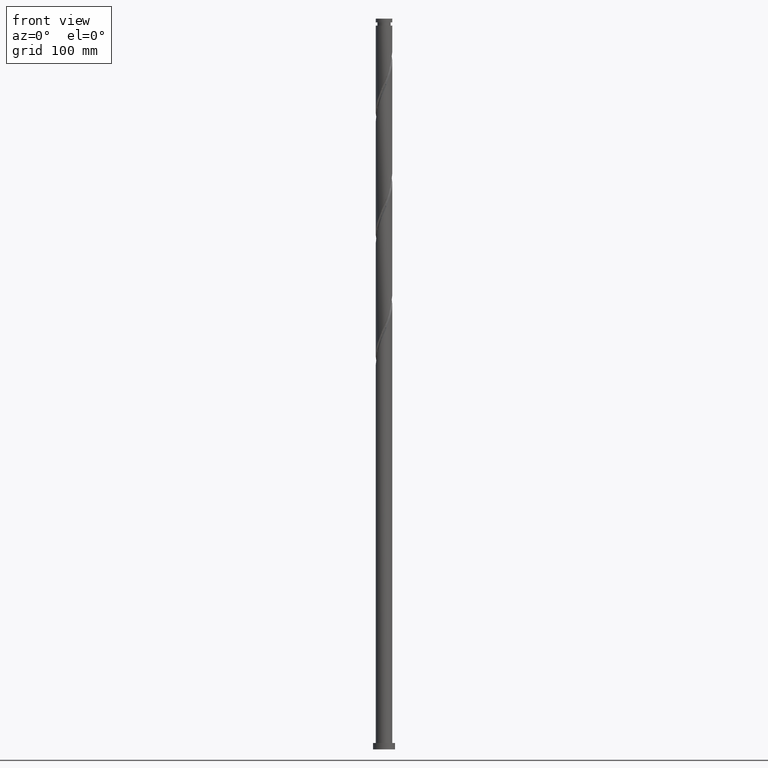
[diagram: clean part render]
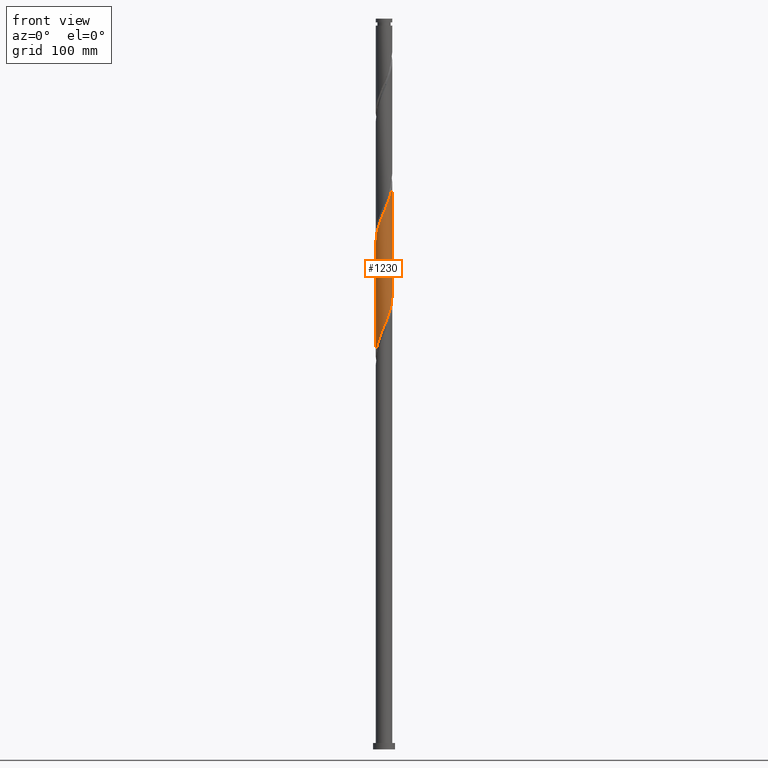
[diagram: same view with one face highlighted and labeled with its STEP entity id]
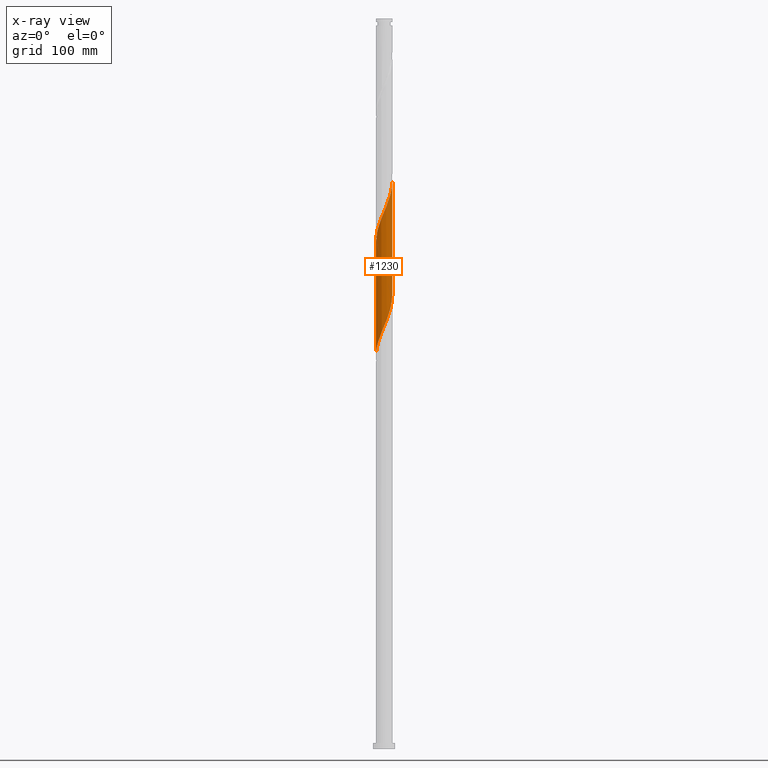
[diagram: x-ray of the same camera — body ghosted, the highlighted face saturated]
A machine part, front view. The second image highlights one B-rep face of the part: STEP entity #1230.
The next image is the same camera in x-ray: the body ghosted, the highlighted face saturated — about 0% of this face is hidden behind the body in this view.
In plain terms, the highlighted cylindrical surface (edge-blend (fillet) strip) has radius 9 mm, axis along (-0, -0, -1).
Its self-contained STEP definition (entity closure, byte-faithful):
#3 = VERTEX_POINT ( 'NONE', #1522 ) ;
#19 = CARTESIAN_POINT ( 'NONE',  ( 9.000000000000000000, -4.807045443360459022E-15, 496.5690066696683971 ) ) ;
#28 = CARTESIAN_POINT ( 'NONE',  ( 1.169912026461557675, -8.923637478648528187, 466.0012849951952489 ) ) ;
#179 = CARTESIAN_POINT ( 'NONE',  ( 8.433726960243481230, -3.229304788967275908, 488.8083025390549778 ) ) ;
#189 = FACE_OUTER_BOUND ( 'NONE', #1889, .T. ) ;
#194 = CARTESIAN_POINT ( 'NONE',  ( -8.641977487961812088, -2.513210118068413657, 560.7381271004586551 ) ) ;
#196 = DIRECTION ( 'NONE',  ( -0.000000000000000000, -0.000000000000000000, -1.000000000000000000 ) ) ;
#210 = CARTESIAN_POINT ( 'NONE',  ( -8.937772968675862018, -1.056510463936469968, 557.2293551706337666 ) ) ;
#292 = CARTESIAN_POINT ( 'NONE',  ( 3.914726728146227686, -8.138247631027358153, 597.5802323636161191 ) ) ;
#297 = CARTESIAN_POINT ( 'NONE',  ( -8.954220682007743903, -1.173921563772243770, 432.6679516618619346 ) ) ;
#304 = CARTESIAN_POINT ( 'NONE',  ( 4.557786610309060293, -7.760578664950677386, 599.3346183285286770 ) ) ;
#307 = EDGE_CURVE ( 'NONE', #1803, #3, #1816, .T. ) ;
#316 = CARTESIAN_POINT ( 'NONE',  ( 8.087884598390568058, -4.017745958009479423, 611.6153200829147636 ) ) ;
#353 = CARTESIAN_POINT ( 'NONE',  ( 2.622738405899098346, -8.609369503873200102, 469.5100569250199101 ) ) ;
#378 = CARTESIAN_POINT ( 'NONE',  ( -1.060131349976165094, -8.968404617365475673, 460.7381271004584846 ) ) ;
#386 = EDGE_CURVE ( 'NONE', #1487, #1628, #1313, .T. ) ;
#389 = CARTESIAN_POINT ( 'NONE',  ( -6.928210819915963548, -5.792758815519967186, 569.5100569250198532 ) ) ;
#411 = CARTESIAN_POINT ( 'NONE',  ( 0.000000000000000000, 0.000000000000000000, 800.0000000000000000 ) ) ;
#424 = CARTESIAN_POINT ( 'NONE',  ( -8.087884598390560953, -4.017745958009474094, 439.6854955215110863 ) ) ;
#436 = CARTESIAN_POINT ( 'NONE',  ( -6.345100722077868127, -6.426185235944545049, 446.7030393811601812 ) ) ;
#483 = CARTESIAN_POINT ( 'NONE',  ( -1.909345709596586449, -8.826695804276367241, 583.5451446443179293 ) ) ;
#494 = CARTESIAN_POINT ( 'NONE',  ( -2.622738405899103675, -8.609369503873207208, 581.7907586794059398 ) ) ;
#537 = CARTESIAN_POINT ( 'NONE',  ( -2.521823423607691517, -8.671595382634517790, 457.2293551706339372 ) ) ;
#548 = CARTESIAN_POINT ( 'NONE',  ( 3.336131102201616017, -8.392043203470045398, 471.2644428899321838 ) ) ;
#549 = CARTESIAN_POINT ( 'NONE',  ( 8.850228015680121629, -1.797115447169556068, 492.3170744688795821 ) ) ;
#564 = CARTESIAN_POINT ( 'NONE',  ( -8.110451389330130212, -3.901355951629270624, 564.2468990302829752 ) ) ;
#570 = CARTESIAN_POINT ( 'NONE',  ( 8.954220682007752785, -1.173921563772247767, 618.6328639425636311 ) ) ;
#580 = CARTESIAN_POINT ( 'NONE',  ( -7.702080871409618723, -4.655958574801333683, 441.4398814864234168 ) ) ;
#587 = CARTESIAN_POINT ( 'NONE',  ( -7.787175818416772088, -4.573407114291269338, 566.0012849951951921 ) ) ;
#612 = CARTESIAN_POINT ( 'NONE',  ( 9.000000000000012434, -0.2146260082065185038, 620.8921525829841812 ) ) ;
#616 = CARTESIAN_POINT ( 'NONE',  ( -5.200846492471890237, -7.382909698873985960, 450.2118113109847286 ) ) ;
#637 = CARTESIAN_POINT ( 'NONE',  ( 8.363380121220270524, -3.324736523091387230, 613.3697060478268668 ) ) ;
#650 = CARTESIAN_POINT ( 'NONE',  ( -6.404236555330750313, -6.323428986188232237, 571.2644428899321838 ) ) ;
#663 = CARTESIAN_POINT ( 'NONE',  ( -1.169912026461562116, -8.923637478648537069, 585.2995306092304872 ) ) ;
#690 = CARTESIAN_POINT ( 'NONE',  ( 5.772973607274883179, -6.904547467409275718, 602.8433902583531108 ) ) ;
#726 = CARTESIAN_POINT ( 'NONE',  ( 8.110451389330124883, -3.901355951629267516, 487.0539165741427041 ) ) ;
#735 = DIRECTION ( 'NONE',  ( -1.000000000000000000, 0.000000000000000000, 0.000000000000000000 ) ) ;
#738 = CARTESIAN_POINT ( 'NONE',  ( 8.638875644049969438, -2.631727088173299034, 615.1240920127391973 ) ) ;
#741 = CARTESIAN_POINT ( 'NONE',  ( -8.433726960243495441, -3.229304788967272355, 562.4925130653708720 ) ) ;
#791 = CARTESIAN_POINT ( 'NONE',  ( 8.796548163028864664, -1.902824325972774178, 616.8784779776515279 ) ) ;
#813 = ORIENTED_EDGE ( 'NONE', *, *, #307, .F. ) ;
#829 = CARTESIAN_POINT ( 'NONE',  ( -0.4304783433265422232, -9.020579153020705121, 587.0539165741425904 ) ) ;
#852 = CARTESIAN_POINT ( 'NONE',  ( -4.671915534983323681, -7.728477540496988318, 576.5276007846688344 ) ) ;
#990 = ORIENTED_EDGE ( 'NONE', *, *, #386, .F. ) ;
#1028 = CARTESIAN_POINT ( 'NONE',  ( 7.702080871409623164, -4.655958574801344341, 609.8609341180022057 ) ) ;
#1040 = CARTESIAN_POINT ( 'NONE',  ( -5.276088912864429936, -7.291288348676742359, 574.7732148197567312 ) ) ;
#1073 = CARTESIAN_POINT ( 'NONE',  ( 0.4304783433265346737, -9.020579153020694463, 464.2468990302829184 ) ) ;
#1084 = CARTESIAN_POINT ( 'NONE',  ( 8.999999999999998224, -0.5300877757809222546, 495.3184795554831226 ) ) ;
#1099 = CARTESIAN_POINT ( 'NONE',  ( 5.880262290745527309, -6.854099156856493735, 478.2819867495811650 ) ) ;
#1125 = CARTESIAN_POINT ( 'NONE',  ( -8.363380121220265195, -3.324736523091380125, 437.9311095565988694 ) ) ;
#1135 = CYLINDRICAL_SURFACE ( 'NONE', #1695, 9.000000000000001776 ) ;
#1151 = CARTESIAN_POINT ( 'NONE',  ( -8.638875644049964109, -2.631727088173291040, 436.1767235916865957 ) ) ;
#1167 = CARTESIAN_POINT ( 'NONE',  ( -8.796548163028855782, -1.902824325972765962, 434.4223376267742083 ) ) ;
#1177 = CARTESIAN_POINT ( 'NONE',  ( -8.989769301839663385, -0.4290080415344290077, 430.9135656969496608 ) ) ;
#1214 = CARTESIAN_POINT ( 'NONE',  ( 0.3148265033248102696, -8.994491885193095726, 588.8083025390551484 ) ) ;
#1230 = ADVANCED_FACE ( 'NONE', ( #189 ), #1135, .T. ) ;
#1270 = CARTESIAN_POINT ( 'NONE',  ( -3.218275075876960045, -8.404921506830934419, 455.4749692057216066 ) ) ;
#1284 = CARTESIAN_POINT ( 'NONE',  ( 6.928210819915951113, -5.792758815519967186, 481.7907586794057693 ) ) ;
#1289 = CARTESIAN_POINT ( 'NONE',  ( -9.000000000000010658, 7.464356278509995723E-16, 554.7318089347573959 ) ) ;
#1313 =( BOUNDED_CURVE ( )  B_SPLINE_CURVE ( 2, ( #19, #1084, #1473, #549, #1483, #179, #726, #1462, #2190, #1284, #2012, #1099, #1827, #2023, #1667, #548, #353, #2010, #28, #1073, #1804, #378, #2356, #537, #1270, #2056, #2254, #616, #1854, #436, #1896, #1336, #580, #424, #1125, #1151, #1167, #297, #1177, #1541, #2094 ),
 .UNSPECIFIED., .F., .T. ) 
 B_SPLINE_CURVE_WITH_KNOTS ( ( 3, 2, 2, 2, 2, 2, 2, 2, 2, 2, 2, 2, 2, 2, 2, 2, 2, 2, 2, 2, 3 ),
 ( 0.8045295809515956575, 0.8092105263157894912, 0.8157894736842105088, 0.8223684210526315264, 0.8289473684210526550, 0.8355263157894736725, 0.8421052631578946901, 0.8486842105263158187, 0.8552631578947368363, 0.8618421052631578538, 0.8684210526315789824, 0.8750000000000000000, 0.8815789473684210176, 0.8881578947368421462, 0.8947368421052631637, 0.9013157894736841813, 0.9078947368421053099, 0.9144736842105263275, 0.9210526315789473450, 0.9276315789473684736, 0.9295295809515955465 ),
 .UNSPECIFIED. ) 
 CURVE ( )  GEOMETRIC_REPRESENTATION_ITEM ( )  RATIONAL_B_SPLINE_CURVE ( ( 0.9078162034606180875, 0.9068816855934254129, 0.9090909090909469192, 0.9059859027333740933, 0.9090909090909469192, 0.9059859027333740933, 0.9090909090909469192, 0.9059859027333740933, 0.9090909090909469192, 0.9059859027333740933, 0.9090909090909469192, 0.9059859027333740933, 0.9090909090909469192, 0.9059859027333740933, 0.9090909090909469192, 0.9059859027333740933, 0.9090909090909469192, 0.9059859027333740933, 0.9090909090909469192, 0.9059859027333740933, 0.9090909090909469192, 0.9059859027333740933, 0.9090909090909469192, 0.9059859027333740933, 0.9090909090909469192, 0.9059859027333740933, 0.9090909090909469192, 0.9059859027333740933, 0.9090909090909469192, 0.9059859027333740933, 0.9090909090909469192, 0.9059859027333740933, 0.9090909090909469192, 0.9059859027333740933, 0.9090909090909469192, 0.9059859027333740933, 0.9090909090909469192, 0.9059859027333740933, 0.9090909090909469192, 0.9081951262308955997, 0.9078162034606180875 ) ) 
 REPRESENTATION_ITEM ( '' )  );
#1336 = CARTESIAN_POINT ( 'NONE',  ( -7.316277144428673829, -5.294171191593195935, 443.1942674513356337 ) ) ;
#1376 = CARTESIAN_POINT ( 'NONE',  ( 6.345100722077872568, -6.426185235944554819, 604.5977762232654413 ) ) ;
#1424 = CARTESIAN_POINT ( 'NONE',  ( 6.830688933253277639, -5.860178213768877598, 606.3521621881776582 ) ) ;
#1462 = CARTESIAN_POINT ( 'NONE',  ( 7.787175818416761430, -4.573407114291266673, 485.2995306092304304 ) ) ;
#1473 = CARTESIAN_POINT ( 'NONE',  ( 8.937772968675853136, -1.056510463936469968, 494.0714604337919127 ) ) ;
#1482 = LINE ( 'NONE', #2210, #1973 ) ;
#1483 = CARTESIAN_POINT ( 'NONE',  ( 8.641977487961801430, -2.513210118068416321, 490.5626885039673084 ) ) ;
#1487 = VERTEX_POINT ( 'NONE', #2113 ) ;
#1498 = CARTESIAN_POINT ( 'NONE',  ( -8.850228015680128735, -1.797115447169554736, 558.9837411355463246 ) ) ;
#1522 = CARTESIAN_POINT ( 'NONE',  ( 9.000000000000010658, -2.597595984921478145E-15, 621.3984756014241384 ) ) ;
#1537 = DIRECTION ( 'NONE',  ( -0.000000000000000000, -0.000000000000000000, -1.000000000000000000 ) ) ;
#1541 = CARTESIAN_POINT ( 'NONE',  ( -9.000000000000003553, -0.2146260082065093167, 430.4086630214418960 ) ) ;
#1559 = CARTESIAN_POINT ( 'NONE',  ( 1.060131349976159765, -8.968404617365488107, 590.5626885039672516 ) ) ;
#1573 = CARTESIAN_POINT ( 'NONE',  ( -9.000000000000001776, 0.000000000000000000, 800.0000000000000000 ) ) ;
#1628 = VERTEX_POINT ( 'NONE', #1786 ) ;
#1636 = CARTESIAN_POINT ( 'NONE',  ( 8.989769301839674043, -0.4290080415344302289, 620.3872499074761890 ) ) ;
#1667 = CARTESIAN_POINT ( 'NONE',  ( 4.004023318592468961, -8.060260371983513750, 473.0188288548444575 ) ) ;
#1695 = AXIS2_PLACEMENT_3D ( 'NONE', #411, #196, #735 ) ;
#1737 = CARTESIAN_POINT ( 'NONE',  ( -5.880262290745535303, -6.854099156856499064, 573.0188288548445144 ) ) ;
#1779 = VECTOR ( 'NONE', #1537, 1000.000000000000000 ) ;
#1786 = CARTESIAN_POINT ( 'NONE',  ( -9.000000000000005329, 1.283869279903725074E-15, 429.9023400030017115 ) ) ;
#1803 = VERTEX_POINT ( 'NONE', #2183 ) ;
#1804 = CARTESIAN_POINT ( 'NONE',  ( -0.3148265033248133782, -8.994491885193088621, 462.4925130653707015 ) ) ;
#1816 =( BOUNDED_CURVE ( )  B_SPLINE_CURVE ( 2, ( #1289, #2216, #210, #1498, #194, #741, #564, #587, #2027, #389, #650, #1737, #1040, #852, #2102, #2137, #494, #483, #663, #829, #1214, #1559, #2327, #1931, #2276, #292, #304, #1955, #690, #1376, #1424, #2288, #1028, #316, #637, #738, #791, #570, #1636, #612, #2073 ),
 .UNSPECIFIED., .F., .T. ) 
 B_SPLINE_CURVE_WITH_KNOTS ( ( 3, 2, 2, 2, 2, 2, 2, 2, 2, 2, 2, 2, 2, 2, 2, 2, 2, 2, 2, 2, 3 ),
 ( 0.3045295809515959351, 0.3092105263157894912, 0.3157894736842105088, 0.3223684210526315264, 0.3289473684210526550, 0.3355263157894736725, 0.3421052631578946901, 0.3486842105263158187, 0.3552631578947368363, 0.3618421052631578538, 0.3684210526315789824, 0.3750000000000000000, 0.3815789473684210176, 0.3881578947368421462, 0.3947368421052631637, 0.4013157894736841813, 0.4078947368421053099, 0.4144736842105263275, 0.4210526315789473450, 0.4276315789473684736, 0.4295295809515954910 ),
 .UNSPECIFIED. ) 
 CURVE ( )  GEOMETRIC_REPRESENTATION_ITEM ( )  RATIONAL_B_SPLINE_CURVE ( ( 0.9078162034606220843, 0.9068816855934297427, 0.9090909090909511381, 0.9059859027333782011, 0.9090909090909511381, 0.9059859027333782011, 0.9090909090909511381, 0.9059859027333782011, 0.9090909090909511381, 0.9059859027333782011, 0.9090909090909511381, 0.9059859027333782011, 0.9090909090909511381, 0.9059859027333782011, 0.9090909090909511381, 0.9059859027333782011, 0.9090909090909511381, 0.9059859027333782011, 0.9090909090909511381, 0.9059859027333782011, 0.9090909090909511381, 0.9059859027333782011, 0.9090909090909511381, 0.9059859027333782011, 0.9090909090909511381, 0.9059859027333782011, 0.9090909090909511381, 0.9059859027333782011, 0.9090909090909511381, 0.9059859027333782011, 0.9090909090909511381, 0.9059859027333782011, 0.9090909090909511381, 0.9059859027333782011, 0.9090909090909511381, 0.9059859027333782011, 0.9090909090909511381, 0.9059859027333782011, 0.9090909090909511381, 0.9081951262308998185, 0.9078162034606223063 ) ) 
 REPRESENTATION_ITEM ( '' )  );
#1827 = CARTESIAN_POINT ( 'NONE',  ( 5.276088912864417502, -7.291288348676741471, 476.5276007846690050 ) ) ;
#1854 = CARTESIAN_POINT ( 'NONE',  ( -5.772973607274879626, -6.904547467409264172, 448.4574253460725117 ) ) ;
#1889 = EDGE_LOOP ( 'NONE', ( #2238, #813, #2214, #990 ) ) ;
#1896 = CARTESIAN_POINT ( 'NONE',  ( -6.830688933253270534, -5.860178213768870492, 444.9486534162480211 ) ) ;
#1915 = DIRECTION ( 'NONE',  ( -0.000000000000000000, -0.000000000000000000, -1.000000000000000000 ) ) ;
#1931 = CARTESIAN_POINT ( 'NONE',  ( 2.521823423607686632, -8.671595382634528448, 594.0714604337916853 ) ) ;
#1955 = CARTESIAN_POINT ( 'NONE',  ( 5.200846492471891125, -7.382909698873995730, 601.0890042934407802 ) ) ;
#1973 = VECTOR ( 'NONE', #1915, 1000.000000000000000 ) ;
#2010 = CARTESIAN_POINT ( 'NONE',  ( 1.909345709596577345, -8.826695804276358359, 467.7556709601075795 ) ) ;
#2012 = CARTESIAN_POINT ( 'NONE',  ( 6.404236555330742320, -6.323428986188227796, 480.0363727144936092 ) ) ;
#2023 = CARTESIAN_POINT ( 'NONE',  ( 4.671915534983316576, -7.728477540496982101, 474.7732148197567312 ) ) ;
#2027 = CARTESIAN_POINT ( 'NONE',  ( -7.357693319166369150, -5.183082964905616485, 567.7556709601076363 ) ) ;
#2056 = CARTESIAN_POINT ( 'NONE',  ( -3.914726728146230350, -8.138247631027351048, 453.7205832408093897 ) ) ;
#2073 = CARTESIAN_POINT ( 'NONE',  ( 9.000000000000010658, -2.597595984921478145E-15, 621.3984756014241384 ) ) ;
#2091 = EDGE_CURVE ( 'NONE', #3, #1487, #1482, .T. ) ;
#2094 = CARTESIAN_POINT ( 'NONE',  ( -9.000000000000005329, 1.283869279903725074E-15, 429.9023400030017115 ) ) ;
#2102 = CARTESIAN_POINT ( 'NONE',  ( -4.004023318592473402, -8.060260371983519079, 578.2819867495812787 ) ) ;
#2113 = CARTESIAN_POINT ( 'NONE',  ( 9.000000000000000000, -4.807045443360459022E-15, 496.5690066696683971 ) ) ;
#2137 = CARTESIAN_POINT ( 'NONE',  ( -3.336131102201621790, -8.392043203470052504, 580.0363727144936092 ) ) ;
#2183 = CARTESIAN_POINT ( 'NONE',  ( -9.000000000000010658, 7.464356278509994737E-16, 554.7318089347573959 ) ) ;
#2190 = CARTESIAN_POINT ( 'NONE',  ( 7.357693319166356716, -5.183082964905617374, 483.5451446443182135 ) ) ;
#2210 = CARTESIAN_POINT ( 'NONE',  ( 9.000000000000001776, 1.102182119232617911E-15, 800.0000000000000000 ) ) ;
#2214 = ORIENTED_EDGE ( 'NONE', *, *, #2279, .T. ) ;
#2216 = CARTESIAN_POINT ( 'NONE',  ( -9.000000000000005329, -0.5300877757809486779, 555.9823360489427841 ) ) ;
#2238 = ORIENTED_EDGE ( 'NONE', *, *, #2091, .F. ) ;
#2254 = CARTESIAN_POINT ( 'NONE',  ( -4.557786610309058517, -7.760578664950666727, 451.9661972758971160 ) ) ;
#2276 = CARTESIAN_POINT ( 'NONE',  ( 3.218275075876959157, -8.404921506830946853, 595.8258463987039022 ) ) ;
#2279 = EDGE_CURVE ( 'NONE', #1803, #1628, #2301, .T. ) ;
#2288 = CARTESIAN_POINT ( 'NONE',  ( 7.316277144428680046, -5.294171191593203929, 608.1065481530899888 ) ) ;
#2301 = LINE ( 'NONE', #1573, #1779 ) ;
#2327 = CARTESIAN_POINT ( 'NONE',  ( 1.790977386791925419, -8.820000000000007390, 592.3170744688794684 ) ) ;
#2356 = CARTESIAN_POINT ( 'NONE',  ( -1.790977386791926307, -8.820000000000002061, 458.9837411355462109 ) ) ;